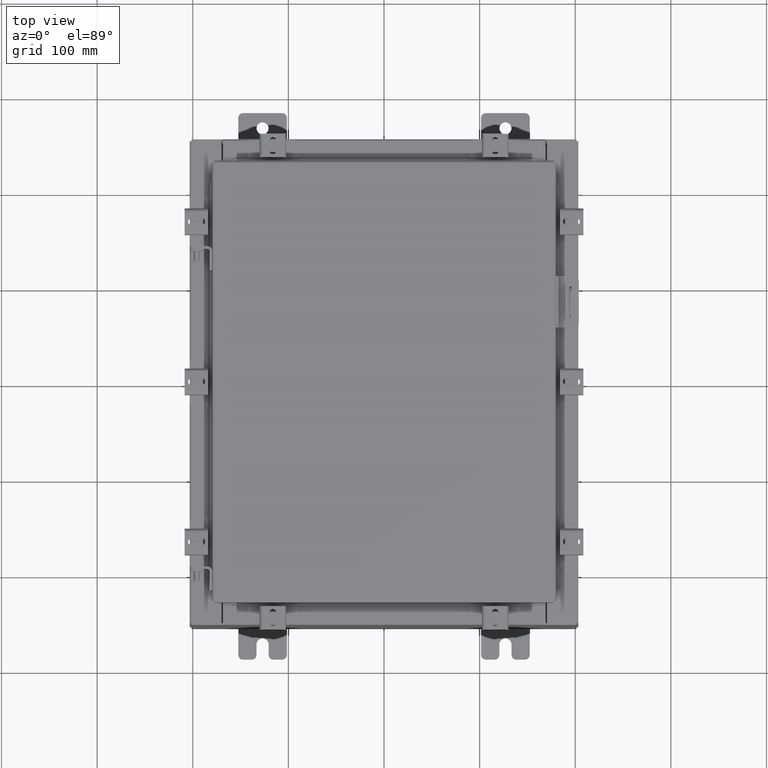
[diagram: clean part render]
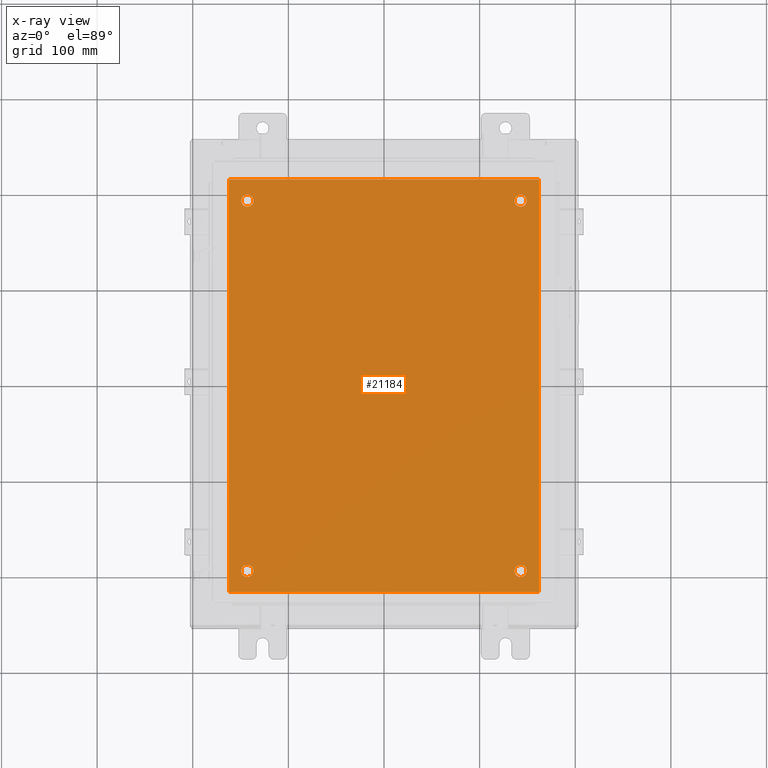
[diagram: x-ray — body ghosted, one internal face saturated and labeled with its STEP entity id]
A machine part, top view, then the same camera in x-ray: the body is ghosted and one INTERNAL B-rep face — a face not visible from any outside direction — is saturated and labeled: STEP entity #21184.
In plain terms, the highlighted planar face has unit normal (0, 0, -1).
Its self-contained STEP definition (entity closure, byte-faithful):
#311 = CARTESIAN_POINT ( 'NONE',  ( 5.625000000000000000, 7.625000000000002700, -0.1039999999999999800 ) ) ;
#330 = ORIENTED_EDGE ( 'NONE', *, *, #2629, .T. ) ;
#377 = VECTOR ( 'NONE', #5665, 39.37007874015748100 ) ;
#578 = CARTESIAN_POINT ( 'NONE',  ( -5.875000000000000000, 7.625000000000001800, -0.1039999999999999800 ) ) ;
#983 = DIRECTION ( 'NONE',  ( 0.0000000000000000000, 1.000000000000000000, 0.0000000000000000000 ) ) ;
#1113 = DIRECTION ( 'NONE',  ( -1.000000000000000000, 0.0000000000000000000, 0.0000000000000000000 ) ) ;
#1127 = FACE_OUTER_BOUND ( 'NONE', #6678, .T. ) ;
#1206 = CARTESIAN_POINT ( 'NONE',  ( -6.499999999999998200, -8.499999999999998200, -0.1039999999999999800 ) ) ;
#1245 = EDGE_CURVE ( 'NONE', #7716, #11212, #10290, .T. ) ;
#1355 = EDGE_LOOP ( 'NONE', ( #21081, #10421 ) ) ;
#1577 = VERTEX_POINT ( 'NONE', #9814 ) ;
#1643 = CARTESIAN_POINT ( 'NONE',  ( 0.0000000000000000000, 0.0000000000000000000, -0.1039999999999999800 ) ) ;
#1735 = VERTEX_POINT ( 'NONE', #7704 ) ;
#2072 = DIRECTION ( 'NONE',  ( -1.000000000000000000, 0.0000000000000000000, 0.0000000000000000000 ) ) ;
#2110 = EDGE_LOOP ( 'NONE', ( #330, #4374 ) ) ;
#2375 = ORIENTED_EDGE ( 'NONE', *, *, #11476, .F. ) ;
#2387 = VERTEX_POINT ( 'NONE', #12250 ) ;
#2557 = CARTESIAN_POINT ( 'NONE',  ( 6.383000000000000900, 8.500000000000000000, -0.1039999999999999800 ) ) ;
#2629 = EDGE_CURVE ( 'NONE', #14526, #1577, #19924, .T. ) ;
#2961 = DIRECTION ( 'NONE',  ( 1.000000000000000000, 0.0000000000000000000, 0.0000000000000000000 ) ) ;
#3358 = EDGE_CURVE ( 'NONE', #2387, #1735, #17772, .T. ) ;
#3392 = DIRECTION ( 'NONE',  ( 0.0000000000000000000, 0.0000000000000000000, -1.000000000000000000 ) ) ;
#3393 = VERTEX_POINT ( 'NONE', #2557 ) ;
#3972 = CARTESIAN_POINT ( 'NONE',  ( -6.382999999999998200, 8.500000000000000000, -0.1039999999999998100 ) ) ;
#4041 = VERTEX_POINT ( 'NONE', #14816 ) ;
#4374 = ORIENTED_EDGE ( 'NONE', *, *, #10532, .T. ) ;
#4400 = CIRCLE ( 'NONE', #9286, 0.2499999999999998100 ) ;
#4521 = EDGE_CURVE ( 'NONE', #18412, #4041, #5475, .T. ) ;
#4645 = VECTOR ( 'NONE', #983, 39.37007874015748100 ) ;
#4799 = EDGE_CURVE ( 'NONE', #1735, #3393, #13886, .T. ) ;
#5241 = FACE_BOUND ( 'NONE', #16331, .T. ) ;
#5415 = DIRECTION ( 'NONE',  ( -0.0000000000000000000, -0.0000000000000000000, 1.000000000000000000 ) ) ;
#5475 = CIRCLE ( 'NONE', #15200, 0.2499999999999998100 ) ;
#5665 = DIRECTION ( 'NONE',  ( 0.0000000000000000000, -1.000000000000000000, 0.0000000000000000000 ) ) ;
#6010 = ORIENTED_EDGE ( 'NONE', *, *, #4799, .F. ) ;
#6023 = CARTESIAN_POINT ( 'NONE',  ( -5.625000000000000000, 7.625000000000001800, -0.1039999999999999800 ) ) ;
#6056 = CARTESIAN_POINT ( 'NONE',  ( 5.625000000000004400, -7.625000000000000900, -0.1039999999999999800 ) ) ;
#6396 = CARTESIAN_POINT ( 'NONE',  ( -5.625000000000000000, 7.625000000000001800, -0.1039999999999999800 ) ) ;
#6529 = AXIS2_PLACEMENT_3D ( 'NONE', #1643, #3392, #15506 ) ;
#6678 = EDGE_LOOP ( 'NONE', ( #12693, #12673, #2375, #6010 ) ) ;
#6752 = CARTESIAN_POINT ( 'NONE',  ( -5.875000000000000000, -7.625000000000001800, -0.1039999999999999800 ) ) ;
#7143 = AXIS2_PLACEMENT_3D ( 'NONE', #311, #12514, #2072 ) ;
#7644 = VERTEX_POINT ( 'NONE', #10662 ) ;
#7704 = CARTESIAN_POINT ( 'NONE',  ( 6.383000000000000900, -8.499999999999998200, -0.1039999999999999800 ) ) ;
#7716 = VERTEX_POINT ( 'NONE', #9075 ) ;
#7810 = DIRECTION ( 'NONE',  ( -1.000000000000000000, 0.0000000000000000000, 0.0000000000000000000 ) ) ;
#7846 = DIRECTION ( 'NONE',  ( -1.000000000000000000, 0.0000000000000000000, 0.0000000000000000000 ) ) ;
#8160 = DIRECTION ( 'NONE',  ( -1.000000000000000000, 0.0000000000000000000, 0.0000000000000000000 ) ) ;
#8259 = CIRCLE ( 'NONE', #13093, 0.2499999999999987000 ) ;
#9075 = CARTESIAN_POINT ( 'NONE',  ( 5.375000000000001800, 7.625000000000002700, -0.1039999999999999800 ) ) ;
#9286 = AXIS2_PLACEMENT_3D ( 'NONE', #6396, #18444, #8160 ) ;
#9515 = CARTESIAN_POINT ( 'NONE',  ( -5.625000000000000000, -7.625000000000001800, -0.1039999999999999800 ) ) ;
#9814 = CARTESIAN_POINT ( 'NONE',  ( 5.375000000000006200, -7.625000000000000900, -0.1039999999999999800 ) ) ;
#9863 = FACE_BOUND ( 'NONE', #1355, .T. ) ;
#9883 = LINE ( 'NONE', #19068, #13938 ) ;
#10290 = CIRCLE ( 'NONE', #15729, 0.2499999999999987000 ) ;
#10338 = PLANE ( 'NONE',  #6529 ) ;
#10421 = ORIENTED_EDGE ( 'NONE', *, *, #4521, .T. ) ;
#10532 = EDGE_CURVE ( 'NONE', #1577, #14526, #8259, .T. ) ;
#10626 = CARTESIAN_POINT ( 'NONE',  ( -6.382999999999998200, 8.500000000000000000, -0.1039999999999998100 ) ) ;
#10662 = CARTESIAN_POINT ( 'NONE',  ( -5.375000000000000900, 7.625000000000001800, -0.1039999999999999800 ) ) ;
#11212 = VERTEX_POINT ( 'NONE', #13314 ) ;
#11266 = DIRECTION ( 'NONE',  ( -1.000000000000000000, 0.0000000000000000000, 0.0000000000000000000 ) ) ;
#11457 = CARTESIAN_POINT ( 'NONE',  ( 5.875000000000003600, -7.625000000000000900, -0.1039999999999999800 ) ) ;
#11476 = EDGE_CURVE ( 'NONE', #3393, #18720, #9883, .T. ) ;
#11802 = CIRCLE ( 'NONE', #14150, 0.2499999999999998100 ) ;
#11991 = CIRCLE ( 'NONE', #7143, 0.2499999999999987000 ) ;
#12250 = CARTESIAN_POINT ( 'NONE',  ( -6.382999999999998200, -8.499999999999998200, -0.1039999999999998100 ) ) ;
#12514 = DIRECTION ( 'NONE',  ( -0.0000000000000000000, -0.0000000000000000000, 1.000000000000000000 ) ) ;
#12673 = ORIENTED_EDGE ( 'NONE', *, *, #17996, .F. ) ;
#12693 = ORIENTED_EDGE ( 'NONE', *, *, #3358, .F. ) ;
#13093 = AXIS2_PLACEMENT_3D ( 'NONE', #6056, #18144, #7846 ) ;
#13210 = VECTOR ( 'NONE', #2961, 39.37007874015748100 ) ;
#13314 = CARTESIAN_POINT ( 'NONE',  ( 5.874999999999999100, 7.625000000000002700, -0.1039999999999999800 ) ) ;
#13545 = CARTESIAN_POINT ( 'NONE',  ( -5.625000000000000000, -7.625000000000001800, -0.1039999999999999800 ) ) ;
#13706 = VERTEX_POINT ( 'NONE', #578 ) ;
#13780 = EDGE_CURVE ( 'NONE', #4041, #18412, #14385, .T. ) ;
#13886 = LINE ( 'NONE', #17585, #4645 ) ;
#13938 = VECTOR ( 'NONE', #20824, 39.37007874015748100 ) ;
#14150 = AXIS2_PLACEMENT_3D ( 'NONE', #6023, #18106, #7810 ) ;
#14187 = ORIENTED_EDGE ( 'NONE', *, *, #20374, .T. ) ;
#14251 = EDGE_LOOP ( 'NONE', ( #14187, #20002 ) ) ;
#14341 = AXIS2_PLACEMENT_3D ( 'NONE', #9515, #21578, #11266 ) ;
#14385 = CIRCLE ( 'NONE', #14341, 0.2499999999999998100 ) ;
#14451 = FACE_BOUND ( 'NONE', #2110, .T. ) ;
#14526 = VERTEX_POINT ( 'NONE', #11457 ) ;
#14816 = CARTESIAN_POINT ( 'NONE',  ( -5.375000000000000900, -7.625000000000001800, -0.1039999999999999800 ) ) ;
#15200 = AXIS2_PLACEMENT_3D ( 'NONE', #13545, #5415, #21193 ) ;
#15506 = DIRECTION ( 'NONE',  ( -1.000000000000000000, 0.0000000000000000000, -0.0000000000000000000 ) ) ;
#15729 = AXIS2_PLACEMENT_3D ( 'NONE', #18101, #18095, #18018 ) ;
#16331 = EDGE_LOOP ( 'NONE', ( #22507, #18054 ) ) ;
#17100 = CARTESIAN_POINT ( 'NONE',  ( 5.625000000000004400, -7.625000000000000900, -0.1039999999999999800 ) ) ;
#17585 = CARTESIAN_POINT ( 'NONE',  ( 6.383000000000002700, -8.499999999999998200, -0.1039999999999998100 ) ) ;
#17772 = LINE ( 'NONE', #1206, #13210 ) ;
#17996 = EDGE_CURVE ( 'NONE', #18720, #2387, #22381, .T. ) ;
#18018 = DIRECTION ( 'NONE',  ( -1.000000000000000000, 0.0000000000000000000, 0.0000000000000000000 ) ) ;
#18054 = ORIENTED_EDGE ( 'NONE', *, *, #1245, .T. ) ;
#18095 = DIRECTION ( 'NONE',  ( -0.0000000000000000000, -0.0000000000000000000, 1.000000000000000000 ) ) ;
#18101 = CARTESIAN_POINT ( 'NONE',  ( 5.625000000000000000, 7.625000000000002700, -0.1039999999999999800 ) ) ;
#18106 = DIRECTION ( 'NONE',  ( -0.0000000000000000000, -0.0000000000000000000, 1.000000000000000000 ) ) ;
#18144 = DIRECTION ( 'NONE',  ( -0.0000000000000000000, -0.0000000000000000000, 1.000000000000000000 ) ) ;
#18211 = AXIS2_PLACEMENT_3D ( 'NONE', #17100, #18964, #1113 ) ;
#18412 = VERTEX_POINT ( 'NONE', #6752 ) ;
#18444 = DIRECTION ( 'NONE',  ( -0.0000000000000000000, -0.0000000000000000000, 1.000000000000000000 ) ) ;
#18720 = VERTEX_POINT ( 'NONE', #3972 ) ;
#18964 = DIRECTION ( 'NONE',  ( -0.0000000000000000000, -0.0000000000000000000, 1.000000000000000000 ) ) ;
#19003 = FACE_BOUND ( 'NONE', #14251, .T. ) ;
#19068 = CARTESIAN_POINT ( 'NONE',  ( -6.499999999999998200, 8.500000000000000000, -0.1039999999999999800 ) ) ;
#19924 = CIRCLE ( 'NONE', #18211, 0.2499999999999987000 ) ;
#20002 = ORIENTED_EDGE ( 'NONE', *, *, #21023, .T. ) ;
#20374 = EDGE_CURVE ( 'NONE', #7644, #13706, #11802, .T. ) ;
#20824 = DIRECTION ( 'NONE',  ( -1.000000000000000000, -0.0000000000000000000, -0.0000000000000000000 ) ) ;
#21023 = EDGE_CURVE ( 'NONE', #13706, #7644, #4400, .T. ) ;
#21081 = ORIENTED_EDGE ( 'NONE', *, *, #13780, .T. ) ;
#21184 = ADVANCED_FACE ( 'NONE', ( #9863, #14451, #5241, #19003, #1127 ), #10338, .T. ) ;
#21193 = DIRECTION ( 'NONE',  ( -1.000000000000000000, 0.0000000000000000000, 0.0000000000000000000 ) ) ;
#21578 = DIRECTION ( 'NONE',  ( -0.0000000000000000000, -0.0000000000000000000, 1.000000000000000000 ) ) ;
#22381 = LINE ( 'NONE', #10626, #377 ) ;
#22455 = EDGE_CURVE ( 'NONE', #11212, #7716, #11991, .T. ) ;
#22507 = ORIENTED_EDGE ( 'NONE', *, *, #22455, .T. ) ;